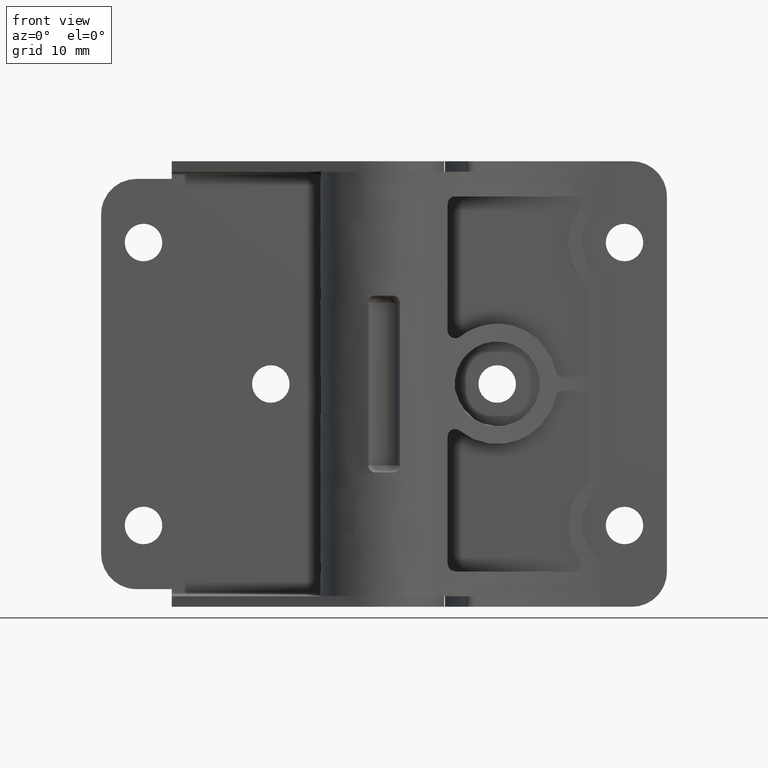
[diagram: clean part render]
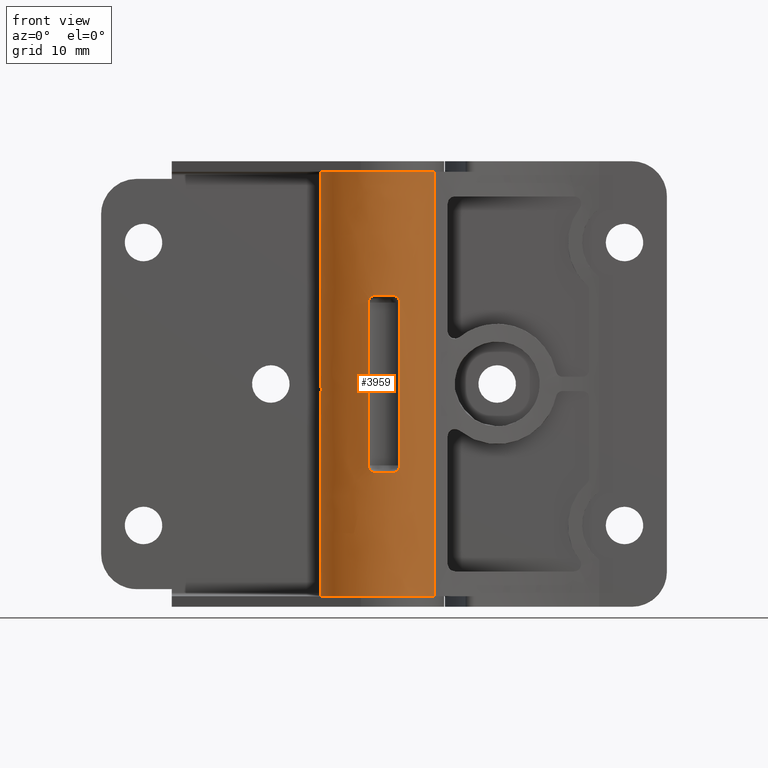
[diagram: same view with one face highlighted and labeled with its STEP entity id]
A machine part, front view. The second image highlights one B-rep face of the part: STEP entity #3959.
In plain terms, the highlighted face is a freeform B-spline surface patch.
Its self-contained STEP definition (entity closure, byte-faithful):
#2929=CARTESIAN_POINT('',(7.166333345818909,-5.444599744389260,1.499999999999946));
#2930=VERTEX_POINT('',#2929);
#2931=CARTESIAN_POINT('',(-6.000014999999790,6.708190516061500,1.499999999999946));
#2932=VERTEX_POINT('',#2931);
#2933=CARTESIAN_POINT('',(7.166333345818926,-5.444599744389270,1.499999999999946));
#2934=CARTESIAN_POINT('',(3.786943373532062,-9.892646650294932,1.499999999999946));
#2935=CARTESIAN_POINT('',(-1.698817181693789,-8.838213630773018,1.499999999999946));
#2936=CARTESIAN_POINT('',(-7.184577736919642,-7.783780611251105,1.499999999999946));
#2937=CARTESIAN_POINT('',(-8.674138269283501,-2.399859430331581,1.499999999999946));
#2938=CARTESIAN_POINT('',(-10.163698801647364,2.984061750587940,1.499999999999946));
#2939=CARTESIAN_POINT('',(-6.000014999999793,6.708190516061501,1.499999999999946));
#2947=(BOUNDED_CURVE()B_SPLINE_CURVE(2,(#2933,#2934,#2935,#2936,#2937,#2938,#2939),.UNSPECIFIED.,.F.,.U.)B_SPLINE_CURVE_WITH_KNOTS((3,2,2,3),(0.0,0.333333333333333,0.666666666666667,1.0),.UNSPECIFIED.)CURVE()GEOMETRIC_REPRESENTATION_ITEM()RATIONAL_B_SPLINE_CURVE((1.0,0.849641338482108,1.0,0.849641338482108,1.0,0.849641338482108,1.0))REPRESENTATION_ITEM(''));
#2948=EDGE_CURVE('',#2930,#2932,#2947,.T.);
#3211=CARTESIAN_POINT('',(-6.000014999999790,6.708190516061500,61.500000000000000));
#3212=VERTEX_POINT('',#3211);
#3213=CARTESIAN_POINT('',(7.166333345818909,-5.444599744389260,61.500000000000000));
#3214=VERTEX_POINT('',#3213);
#3215=CARTESIAN_POINT('',(-6.000014999999792,6.708190516061503,61.500000000000000));
#3216=CARTESIAN_POINT('',(-10.163698801647358,2.984061750587943,61.499999999999993));
#3217=CARTESIAN_POINT('',(-8.674138269283501,-2.399859430331578,61.500000000000000));
#3218=CARTESIAN_POINT('',(-7.184577736919644,-7.783780611251100,61.499999999999993));
#3219=CARTESIAN_POINT('',(-1.698817181693792,-8.838213630773016,61.500000000000000));
#3220=CARTESIAN_POINT('',(3.786943373532054,-9.892646650294930,61.499999999999993));
#3221=CARTESIAN_POINT('',(7.166333345818921,-5.444599744389277,61.500000000000000));
#3229=(BOUNDED_CURVE()B_SPLINE_CURVE(2,(#3215,#3216,#3217,#3218,#3219,#3220,#3221),.UNSPECIFIED.,.F.,.U.)B_SPLINE_CURVE_WITH_KNOTS((3,2,2,3),(0.0,0.333333333333333,0.666666666666667,1.0),.UNSPECIFIED.)CURVE()GEOMETRIC_REPRESENTATION_ITEM()RATIONAL_B_SPLINE_CURVE((1.0,0.849641338482108,1.0,0.849641338482108,1.0,0.849641338482108,1.0))REPRESENTATION_ITEM(''));
#3230=EDGE_CURVE('',#3212,#3214,#3229,.T.);
#3507=CARTESIAN_POINT('',(-2.232352668710555,-8.718750000000000,43.0));
#3508=VERTEX_POINT('',#3507);
#3509=CARTESIAN_POINT('',(-1.246982275545326,-8.913194444444470,44.0));
#3510=VERTEX_POINT('',#3509);
#3511=CARTESIAN_POINT('',(-2.232352668710555,-8.718750000000000,43.0));
#3512=CARTESIAN_POINT('',(-2.232352668710555,-8.718750000000002,43.066178663022590));
#3513=CARTESIAN_POINT('',(-2.226002815179270,-8.720382803195427,43.131238373840553));
#3514=CARTESIAN_POINT('',(-2.207339997479237,-8.725118413373629,43.227220311548393));
#3515=CARTESIAN_POINT('',(-2.199584451270300,-8.727079735601899,43.258944361349862));
#3516=CARTESIAN_POINT('',(-2.180930412050456,-8.731760132276698,43.321840728859229));
#3517=CARTESIAN_POINT('',(-2.169984765584259,-8.734490621267476,43.353080564381287));
#3518=CARTESIAN_POINT('',(-2.133110073708153,-8.743596662526899,43.443918933618249));
#3519=CARTESIAN_POINT('',(-2.103016533620425,-8.750923267008917,43.501346481491652));
#3520=CARTESIAN_POINT('',(-2.049644422911745,-8.763520518665361,43.582844715053888));
#3521=CARTESIAN_POINT('',(-2.030382225449291,-8.768009466938226,43.609340382672251));
#3522=CARTESIAN_POINT('',(-1.989396837984229,-8.777399513224696,43.660200045237410));
#3523=CARTESIAN_POINT('',(-1.967821381994838,-8.782267144553948,43.684405283318512));
#3524=CARTESIAN_POINT('',(-1.899932775604110,-8.797295277933817,43.753463146217364));
#3525=CARTESIAN_POINT('',(-1.850487676917362,-8.807877553656772,43.794791855944247));
#3526=CARTESIAN_POINT('',(-1.769827049384402,-8.824311028399087,43.849553503462452));
#3527=CARTESIAN_POINT('',(-1.741919621234566,-8.829867081309715,43.866521594863478));
#3528=CARTESIAN_POINT('',(-1.685128315321497,-8.840881132632687,43.897302505037338));
#3529=CARTESIAN_POINT('',(-1.627079343423585,-8.851855094078447,43.925126540747662));
#3530=CARTESIAN_POINT('',(-1.566535654118260,-8.862671718641636,43.947119038093220));
#3531=CARTESIAN_POINT('',(-1.504719722129327,-8.873376048938139,43.966151499832080));
#3532=CARTESIAN_POINT('',(-1.473024892047721,-8.878696101744836,43.974214271576130));
#3533=CARTESIAN_POINT('',(-1.377214400396778,-8.894237892830638,43.993527492518133));
#3534=CARTESIAN_POINT('',(-1.312517486564620,-8.904025874514293,44.000000000000007));
#3535=CARTESIAN_POINT('',(-1.246982275545330,-8.913194444444470,44.0));
#3536=B_SPLINE_CURVE_WITH_KNOTS('',3,(#3511,#3512,#3513,#3514,#3515,#3516,#3517,#3518,#3519,#3520,#3521,#3522,#3523,#3524,#3525,#3526,#3527,#3528,#3529,#3530,#3531,#3532,#3533,#3534,#3535),.UNSPECIFIED.,.F.,.U.,(4,2,2,2,2,2,2,2,2,1,2,2,4),(0.0,0.125000000000000,0.187499999999999,0.249999999999999,0.374999999999999,0.437499999999999,0.499999999999999,0.624999999999999,0.687499999999999,0.749999999999998,0.812499999999998,0.874999999999998,1.0),.UNSPECIFIED.);
#3537=EDGE_CURVE('',#3508,#3510,#3536,.T.);
#3539=CARTESIAN_POINT('',(2.232352668710555,-8.718750000000000,43.0));
#3540=VERTEX_POINT('',#3539);
#3556=CARTESIAN_POINT('',(1.246982275545326,-8.913194444444470,44.0));
#3557=VERTEX_POINT('',#3556);
#3558=CARTESIAN_POINT('',(1.246982275545326,-8.913194444444470,44.0));
#3559=CARTESIAN_POINT('',(1.312509978581444,-8.904026924903354,44.000000000000007));
#3560=CARTESIAN_POINT('',(1.376903183968997,-8.894281910241590,43.993529568136900));
#3561=CARTESIAN_POINT('',(1.471863389521804,-8.878887679873213,43.974478106682973));
#3562=CARTESIAN_POINT('',(1.503243339676461,-8.873626976486095,43.966558349626183));
#3563=CARTESIAN_POINT('',(1.565446251108543,-8.862864903122107,43.947500237381568));
#3564=CARTESIAN_POINT('',(1.596141759054887,-8.857383833322686,43.936381536478017));
#3565=CARTESIAN_POINT('',(1.685487433214378,-8.840972777680859,43.898912762576600));
#3566=CARTESIAN_POINT('',(1.742034647892404,-8.829966126085406,43.868311939617143));
#3567=CARTESIAN_POINT('',(1.822359997992937,-8.813611669643940,43.813941522090687));
#3568=CARTESIAN_POINT('',(1.848517582596940,-8.808157225544523,43.794274609459713));
#3569=CARTESIAN_POINT('',(1.898427721341293,-8.797535061022783,43.752690191986638));
#3570=CARTESIAN_POINT('',(1.922198502712542,-8.792365417532716,43.730788846720962));
#3571=CARTESIAN_POINT('',(1.990058011672518,-8.777346750994894,43.661835224420869));
#3572=CARTESIAN_POINT('',(2.030727485753101,-8.767982147874072,43.611565184786343));
#3573=CARTESIAN_POINT('',(2.102646489091741,-8.751013816052497,43.502073470757800));
#3574=CARTESIAN_POINT('',(2.132906747539142,-8.743645946295102,43.444278209033428));
#3575=CARTESIAN_POINT('',(2.169621659774645,-8.734580743252760,43.354044516880023));
#3576=CARTESIAN_POINT('',(2.180434108462056,-8.731884116142004,43.323325246868421));
#3577=CARTESIAN_POINT('',(2.199153769832699,-8.727188311003054,43.260576234543727));
#3578=CARTESIAN_POINT('',(2.207079894326419,-8.725184278378539,43.228403027144033));
#3579=CARTESIAN_POINT('',(2.226003705837275,-8.720382841826062,43.131537449681183));
#3580=CARTESIAN_POINT('',(2.232352668710555,-8.718750000000004,43.066169843749947));
#3581=CARTESIAN_POINT('',(2.232352668710555,-8.718750000000000,43.0));
#3582=B_SPLINE_CURVE_WITH_KNOTS('',3,(#3558,#3559,#3560,#3561,#3562,#3563,#3564,#3565,#3566,#3567,#3568,#3569,#3570,#3571,#3572,#3573,#3574,#3575,#3576,#3577,#3578,#3579,#3580,#3581),.UNSPECIFIED.,.F.,.U.,(4,2,2,2,2,2,2,2,2,2,2,4),(0.0,0.125000000000005,0.187500000000007,0.250000000000010,0.375000000000014,0.437500000000017,0.500000000000019,0.625000000000024,0.750000000000028,0.812500000000024,0.875000000000020,1.0),.UNSPECIFIED.);
#3583=EDGE_CURVE('',#3557,#3540,#3582,.T.);
#3626=CARTESIAN_POINT('',(-1.246982275545326,-8.913194444444470,19.0));
#3627=VERTEX_POINT('',#3626);
#3628=CARTESIAN_POINT('',(-2.232352668710555,-8.718750000000000,20.0));
#3629=VERTEX_POINT('',#3628);
#3630=CARTESIAN_POINT('',(-1.246982275545326,-8.913194444444470,19.0));
#3631=CARTESIAN_POINT('',(-1.312509978581443,-8.904026924903352,19.0));
#3632=CARTESIAN_POINT('',(-1.376903183969002,-8.894281910241585,19.006470431863100));
#3633=CARTESIAN_POINT('',(-1.471863389521826,-8.878887679873209,19.025521893317020));
#3634=CARTESIAN_POINT('',(-1.503243339676490,-8.873626976486090,19.033441650373831));
#3635=CARTESIAN_POINT('',(-1.565446251108589,-8.862864903122102,19.052499762618449));
#3636=CARTESIAN_POINT('',(-1.596141759054856,-8.857383833322695,19.063618463521959));
#3637=CARTESIAN_POINT('',(-1.685487433214371,-8.840972777680861,19.101087237423378));
#3638=CARTESIAN_POINT('',(-1.742034647892409,-8.829966126085408,19.131688060382860));
#3639=CARTESIAN_POINT('',(-1.822359997992959,-8.813611669643935,19.186058477909331));
#3640=CARTESIAN_POINT('',(-1.848517582596917,-8.808157225544528,19.205725390540270));
#3641=CARTESIAN_POINT('',(-1.898427721341281,-8.797535061022785,19.247309808013341));
#3642=CARTESIAN_POINT('',(-1.922198502712535,-8.792365417532722,19.269211153279031));
#3643=CARTESIAN_POINT('',(-1.990058011672524,-8.777346750994893,19.338164775579131));
#3644=CARTESIAN_POINT('',(-2.030727485753108,-8.767982147874072,19.388434815213682));
#3645=CARTESIAN_POINT('',(-2.102646489091763,-8.751013816052495,19.497926529242228));
#3646=CARTESIAN_POINT('',(-2.132906747539139,-8.743645946295102,19.555721790966562));
#3647=CARTESIAN_POINT('',(-2.169621659774645,-8.734580743252758,19.645955483119980));
#3648=CARTESIAN_POINT('',(-2.180434108462058,-8.731884116142000,19.676674753131589));
#3649=CARTESIAN_POINT('',(-2.199153769832702,-8.727188311003051,19.739423765456259));
#3650=CARTESIAN_POINT('',(-2.207079894326416,-8.725184278378537,19.771596972855949));
#3651=CARTESIAN_POINT('',(-2.226003705837275,-8.720382841826059,19.868462550318810));
#3652=CARTESIAN_POINT('',(-2.232352668710555,-8.718750000000000,19.933830156250060));
#3653=CARTESIAN_POINT('',(-2.232352668710555,-8.718750000000000,20.0));
#3654=B_SPLINE_CURVE_WITH_KNOTS('',3,(#3630,#3631,#3632,#3633,#3634,#3635,#3636,#3637,#3638,#3639,#3640,#3641,#3642,#3643,#3644,#3645,#3646,#3647,#3648,#3649,#3650,#3651,#3652,#3653),.UNSPECIFIED.,.F.,.U.,(4,2,2,2,2,2,2,2,2,2,2,4),(0.0,0.125000000000002,0.187500000000003,0.250000000000004,0.375000000000006,0.437500000000005,0.500000000000003,0.625000000000001,0.749999999999998,0.812499999999997,0.874999999999996,1.0),.UNSPECIFIED.);
#3655=EDGE_CURVE('',#3627,#3629,#3654,.T.);
#3657=CARTESIAN_POINT('',(1.246982275545326,-8.913194444444470,19.0));
#3658=VERTEX_POINT('',#3657);
#3674=CARTESIAN_POINT('',(2.232352668710555,-8.718750000000000,20.0));
#3675=VERTEX_POINT('',#3674);
#3676=CARTESIAN_POINT('',(2.232352668710555,-8.718750000000000,20.0));
#3677=CARTESIAN_POINT('',(2.232352668710555,-8.718750000000002,19.933821336977420));
#3678=CARTESIAN_POINT('',(2.226002815179271,-8.720382803195429,19.868761626159451));
#3679=CARTESIAN_POINT('',(2.207339997479235,-8.725118413373627,19.772779688451610));
#3680=CARTESIAN_POINT('',(2.199584451270301,-8.727079735601901,19.741055638650138));
#3681=CARTESIAN_POINT('',(2.180930412050456,-8.731760132276699,19.678159271140760));
#3682=CARTESIAN_POINT('',(2.169984765584264,-8.734490621267476,19.646919435618720));
#3683=CARTESIAN_POINT('',(2.133110073708155,-8.743596662526903,19.556081066381751));
#3684=CARTESIAN_POINT('',(2.103016533620425,-8.750923267008918,19.498653518508341));
#3685=CARTESIAN_POINT('',(2.049644422911737,-8.763520518665363,19.417155284946091));
#3686=CARTESIAN_POINT('',(2.030382225449313,-8.768009466938219,19.390659617327788));
#3687=CARTESIAN_POINT('',(1.989396837984243,-8.777399513224690,19.339799954762629));
#3688=CARTESIAN_POINT('',(1.967821381994850,-8.782267144553945,19.315594716681499));
#3689=CARTESIAN_POINT('',(1.899932775604110,-8.797295277933815,19.246536853782640));
#3690=CARTESIAN_POINT('',(1.850487676917350,-8.807877553656775,19.205208144055749));
#3691=CARTESIAN_POINT('',(1.769827049384373,-8.824311028399091,19.150446496537551));
#3692=CARTESIAN_POINT('',(1.741919621234589,-8.829867081309706,19.133478405136572));
#3693=CARTESIAN_POINT('',(1.685128315321508,-8.840881132632681,19.102697494962658));
#3694=CARTESIAN_POINT('',(1.627079326012544,-8.851855035446672,19.074873475002178));
#3695=CARTESIAN_POINT('',(1.566535654118242,-8.862671718641636,19.052880961906780));
#3696=CARTESIAN_POINT('',(1.504719722129293,-8.873376048938146,19.033848500167910));
#3697=CARTESIAN_POINT('',(1.473024892047753,-8.878696101744829,19.025785728423891));
#3698=CARTESIAN_POINT('',(1.377214400396785,-8.894237892830637,19.006472507481870));
#3699=CARTESIAN_POINT('',(1.312517486564618,-8.904025874514291,19.0));
#3700=CARTESIAN_POINT('',(1.246982275545328,-8.913194444444470,19.0));
#3701=B_SPLINE_CURVE_WITH_KNOTS('',3,(#3676,#3677,#3678,#3679,#3680,#3681,#3682,#3683,#3684,#3685,#3686,#3687,#3688,#3689,#3690,#3691,#3692,#3693,#3694,#3695,#3696,#3697,#3698,#3699,#3700),.UNSPECIFIED.,.F.,.U.,(4,2,2,2,2,2,2,2,2,1,2,2,4),(0.0,0.124999999999996,0.187499999999994,0.249999999999992,0.374999999999989,0.437499999999990,0.499999999999991,0.624999999999992,0.687499999999994,0.749999999999995,0.812499999999996,0.874999999999997,1.0),.UNSPECIFIED.);
#3702=EDGE_CURVE('',#3675,#3658,#3701,.T.);
#3727=CARTESIAN_POINT('',(-1.246982275545329,-8.913194444444470,19.0));
#3728=CARTESIAN_POINT('',(2.602085E-015,-9.087650954421475,19.0));
#3729=CARTESIAN_POINT('',(1.246982275545325,-8.913194444444471,19.0));
#3737=(BOUNDED_CURVE()B_SPLINE_CURVE(2,(#3727,#3728,#3729),.UNSPECIFIED.,.F.,.U.)CURVE()GEOMETRIC_REPRESENTATION_ITEM()QUASI_UNIFORM_CURVE()RATIONAL_B_SPLINE_CURVE((1.0,0.990354938271608,1.0))REPRESENTATION_ITEM(''));
#3738=EDGE_CURVE('',#3627,#3658,#3737,.T.);
#3749=CARTESIAN_POINT('',(-1.246982275545329,-8.913194444444470,44.0));
#3750=CARTESIAN_POINT('',(2.602085E-015,-9.087650954421475,44.0));
#3751=CARTESIAN_POINT('',(1.246982275545325,-8.913194444444471,44.0));
#3759=(BOUNDED_CURVE()B_SPLINE_CURVE(2,(#3749,#3750,#3751),.UNSPECIFIED.,.F.,.U.)CURVE()GEOMETRIC_REPRESENTATION_ITEM()QUASI_UNIFORM_CURVE()RATIONAL_B_SPLINE_CURVE((1.0,0.990354938271608,1.0))REPRESENTATION_ITEM(''));
#3760=EDGE_CURVE('',#3510,#3557,#3759,.T.);
#3784=CARTESIAN_POINT('',(-2.232352668710555,-8.718750000000000,43.0));
#3785=CARTESIAN_POINT('',(-2.232352668710555,-8.718750000000000,20.0));
#3786=QUASI_UNIFORM_CURVE('',1,(#3784,#3785),.UNSPECIFIED.,.F.,.U.);
#3787=EDGE_CURVE('',#3508,#3629,#3786,.T.);
#3790=CARTESIAN_POINT('',(2.232352668710555,-8.718750000000000,20.0));
#3791=CARTESIAN_POINT('',(2.232352668710555,-8.718750000000000,43.0));
#3792=QUASI_UNIFORM_CURVE('',1,(#3790,#3791),.UNSPECIFIED.,.F.,.U.);
#3793=EDGE_CURVE('',#3675,#3540,#3792,.T.);
#3887=CARTESIAN_POINT('',(-6.000014999999790,6.708190516061500,61.500000000000000));
#3888=CARTESIAN_POINT('',(-6.000014999999790,6.708190516061500,1.499999999999946));
#3889=QUASI_UNIFORM_CURVE('',1,(#3887,#3888),.UNSPECIFIED.,.F.,.U.);
#3890=EDGE_CURVE('',#3212,#2932,#3889,.T.);
#3921=CARTESIAN_POINT('',(-5.818035564490335,6.866619413534257,63.000000000000007));
#3922=CARTESIAN_POINT('',(-5.818035564490335,6.866619413534257,-0.037500000000058));
#3923=CARTESIAN_POINT('',(-13.787139678461211,0.114456761149112,63.000000000000014));
#3924=CARTESIAN_POINT('',(-13.787139678461211,0.114456761149112,-0.037500000000058));
#3925=CARTESIAN_POINT('',(-5.931235116935834,-6.769080438850398,63.000000000000007));
#3926=CARTESIAN_POINT('',(-5.931235116935834,-6.769080438850398,-0.037500000000058));
#3927=CARTESIAN_POINT('',(1.924669444589544,-13.652617638849907,63.000000000000014));
#3928=CARTESIAN_POINT('',(1.924669444589544,-13.652617638849907,-0.037500000000058));
#3929=CARTESIAN_POINT('',(7.571420304301442,-4.865551826423370,63.000000000000007));
#3930=CARTESIAN_POINT('',(7.571420304301442,-4.865551826423370,-0.037500000000058));
#3938=(BOUNDED_SURFACE()B_SPLINE_SURFACE(1,2,((#3921,#3923,#3925,#3927,#3929),(#3922,#3924,#3926,#3928,#3930)),.UNSPECIFIED.,.F.,.F.,.U.)B_SPLINE_SURFACE_WITH_KNOTS((2,2),(3,2,3),(0.0,63.037500000000072),(0.0,16.501091218604621,33.002182437209242),.UNSPECIFIED.)GEOMETRIC_REPRESENTATION_ITEM()RATIONAL_B_SPLINE_SURFACE(((1.0,0.652759752462722,1.0,0.652759752462722,1.0),(1.0,0.652759752462722,1.0,0.652759752462722,1.0)))REPRESENTATION_ITEM('')SURFACE());
#3939=ORIENTED_EDGE('',*,*,#2948,.F.);
#3940=CARTESIAN_POINT('',(7.166333345818909,-5.444599744389260,61.500000000000000));
#3941=CARTESIAN_POINT('',(7.166333345818909,-5.444599744389260,1.499999999999946));
#3942=QUASI_UNIFORM_CURVE('',1,(#3940,#3941),.UNSPECIFIED.,.F.,.U.);
#3943=EDGE_CURVE('',#3214,#2930,#3942,.T.);
#3944=ORIENTED_EDGE('',*,*,#3943,.F.);
#3945=ORIENTED_EDGE('',*,*,#3230,.F.);
#3946=ORIENTED_EDGE('',*,*,#3890,.T.);
#3947=EDGE_LOOP('',(#3939,#3944,#3945,#3946));
#3948=FACE_OUTER_BOUND('',#3947,.T.);
#3949=ORIENTED_EDGE('',*,*,#3787,.F.);
#3950=ORIENTED_EDGE('',*,*,#3537,.T.);
#3951=ORIENTED_EDGE('',*,*,#3760,.T.);
#3952=ORIENTED_EDGE('',*,*,#3583,.T.);
#3953=ORIENTED_EDGE('',*,*,#3793,.F.);
#3954=ORIENTED_EDGE('',*,*,#3702,.T.);
#3955=ORIENTED_EDGE('',*,*,#3738,.F.);
#3956=ORIENTED_EDGE('',*,*,#3655,.T.);
#3957=EDGE_LOOP('',(#3949,#3950,#3951,#3952,#3953,#3954,#3955,#3956));
#3958=FACE_BOUND('',#3957,.T.);
#3959=ADVANCED_FACE('',(#3948,#3958),#3938,.T.);